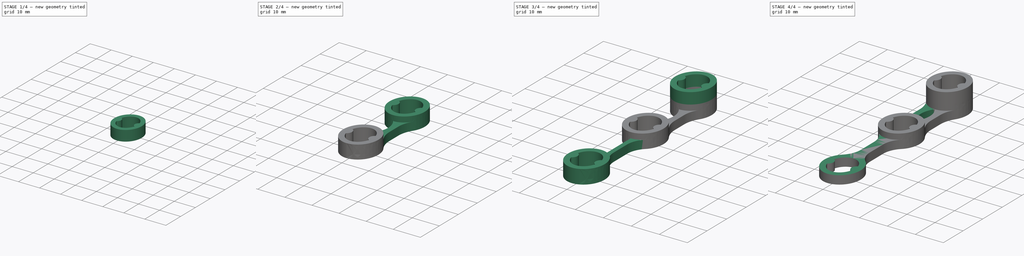
[diagram: build sequence overview — one tinted view per stage of 4, left to right]
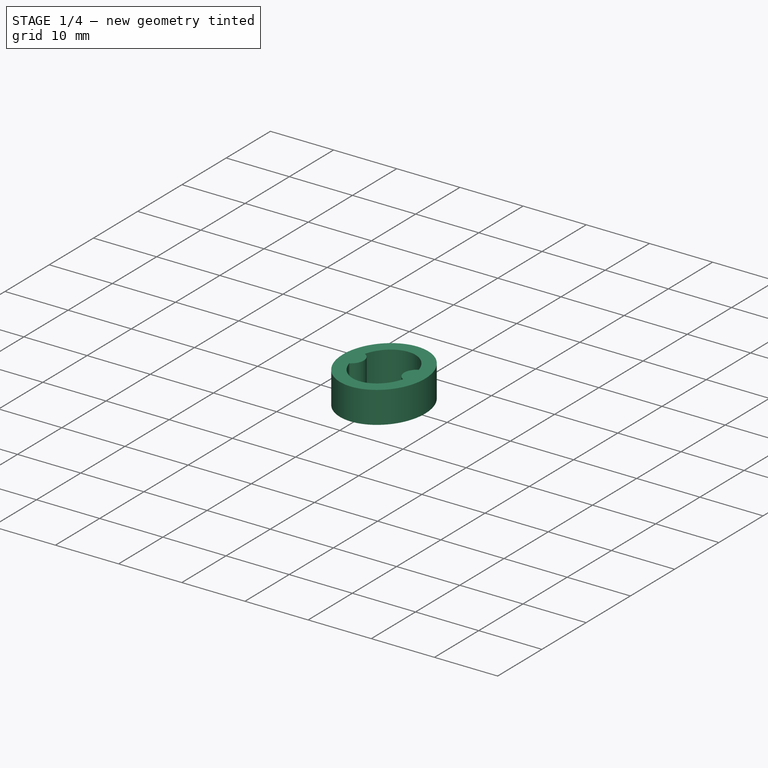
[diagram: stage 1 of 4 — iso view after this stage's code; geometry added in this stage tinted green]
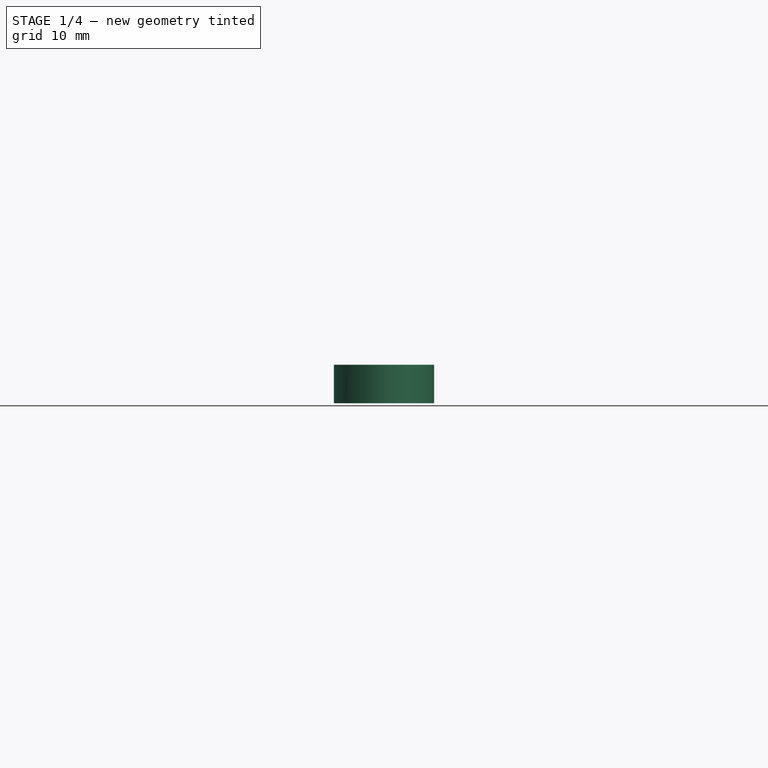
[diagram: stage 1 of 4 — front view after this stage's code; geometry added in this stage tinted green]
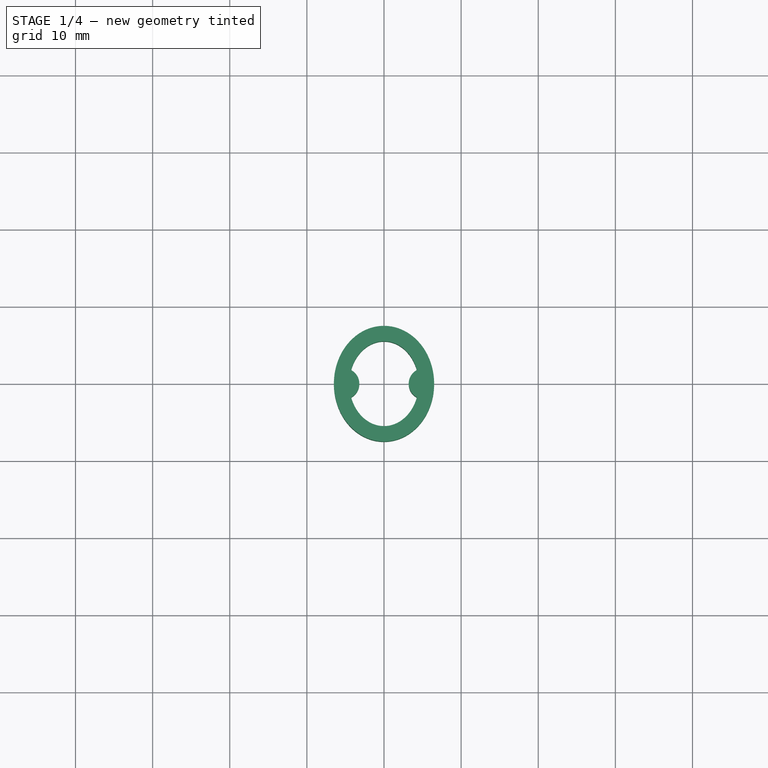
[diagram: stage 1 of 4 — top view after this stage's code; geometry added in this stage tinted green]
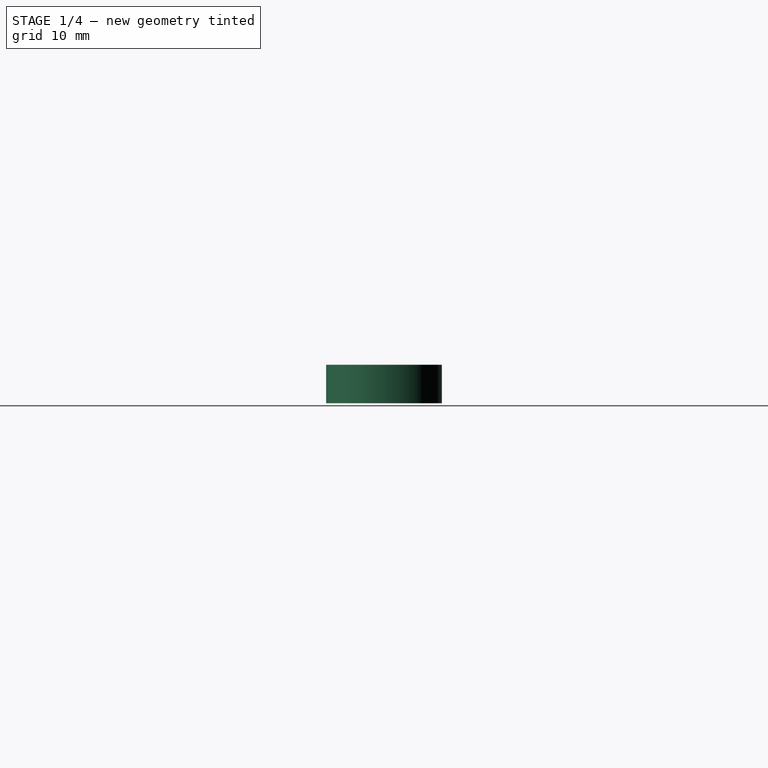
[diagram: stage 1 of 4 — right view after this stage's code; geometry added in this stage tinted green]
FCSTD DOCUMENT  (FreeCAD 1.0RUnknown)
Label: flip-stop_SHALM
License: All rights reserved
LicenseURL: https://en.wikipedia.org/wiki/All_rights_reserved
objects: PartDesign::Pad×5, Sketcher::SketchObject×4, PartDesign::LinearPattern×2, PartDesign::Pocket×1, PartDesign::Mirrored×1, PartDesign::Body×1
note: 33 computed .brp shape members not serialized (recipe doc carries the construction recipe); baked Part::Feature solids carry a one-line shape summary decoded from their .brp

FEATURE [Sketcher::SketchObject] Sketch
  ArcFitTolerance = 1e-06
  AttachmentSupport = -> [XY_Plane]
  FullyConstrained = true
  MakeInternals = false
  MapMode = 5
  sketch-geometry (12):
    g0: Ellipse CenterX=0 CenterY=0 CenterZ=0 NormalX=0 NormalY=0 NormalZ=1 MajorRadius=7.5 MinorRadius=6.5 AngleXU=1.5708
    g1: LineSegment [constr] StartX=0 StartY=7.5 StartZ=0 EndX=0 EndY=-7.5 EndZ=0
    g2: LineSegment [constr] StartX=-6.5 StartY=0 StartZ=0 EndX=6.5 EndY=0 EndZ=0
    g3: GeomPoint [constr] X=4e-16 Y=3.74166 Z=0
    g4: GeomPoint [constr] X=0 Y=-3.74166 Z=0
    g5: Ellipse CenterX=0 CenterY=0 CenterZ=0 NormalX=0 NormalY=0 NormalZ=1 MajorRadius=5.5 MinorRadius=4.5 AngleXU=1.5708
    g6: LineSegment [constr] StartX=0 StartY=5.5 StartZ=0 EndX=0 EndY=-5.5 EndZ=0
    g7: LineSegment [constr] StartX=-4.5 StartY=0 StartZ=0 EndX=4.5 EndY=0 EndZ=0
    g8: GeomPoint [constr] X=4e-16 Y=3.16228 Z=0
    g9: GeomPoint [constr] X=0 Y=-3.16228 Z=0
    g10: LineSegment [constr] StartX=0 StartY=5.5 StartZ=0 EndX=0 EndY=7.5 EndZ=0
    g11: LineSegment [constr] StartX=6.5 StartY=0 StartZ=0 EndX=4.5 EndY=0 EndZ=0
  constraints (14):
    c: InternalAlignment(g1-g4 -> g0) x4
    c: Coincident(g0,g-1)
    c: Horizontal(g2)
    c: DistanceX(g2,g2) = 13
    c: DistanceY(g1,g1) = 15
    c: InternalAlignment(g6-g9 -> g5) x4
    c: Coincident(g5,g0)
    c: Coincident(g10,g6)
    c: Coincident(g10,g1)
    c: Vertical(g10)
    c: Coincident(g11,g2)
    c: Coincident(g11,g7)
    c: Equal(g10,g11)
    c: Distance(g11,g11) = 2
FEATURE [PartDesign::Pad] Pad
  Direction = (0,0,1)
  Length = 5
  Length2 = 10
  Profile = -> Sketch
  ReferenceAxis = -> Sketch [N_Axis]
  Suppressed = false
  Type = 0
FEATURE [Sketcher::SketchObject] Sketch001
  ArcFitTolerance = 1e-06
  AttachmentSupport = -> [XY_Plane]
  ExternalGeometry = -> [Sketch]
  FullyConstrained = false
  MakeInternals = false
  MapMode = 5
  sketch-geometry (5):
    g0: GeomPoint [constr] X=6.5 Y=0 Z=0
    g1: ArcOfCircle CenterX=5.2 CenterY=0 CenterZ=0 NormalX=0 NormalY=0 NormalZ=1 AngleXU=0 Radius=2 StartAngle=1.5708 EndAngle=4.71239
    g2: LineSegment StartX=5.2 StartY=-2 StartZ=0 EndX=5.2 EndY=2 EndZ=0
    g3: LineSegment StartX=-5.2 StartY=2 StartZ=0 EndX=-5.2 EndY=-2 EndZ=0
    g4: ArcOfCircle CenterX=-5.2 CenterY=0 CenterZ=0 NormalX=0 NormalY=0 NormalZ=1 AngleXU=0 Radius=2 StartAngle=4.71239 EndAngle=7.85398
  constraints (13):
    c: PointOnObject(g1,g-1)
    c: Coincident(g2,g1)
    c: Coincident(g2,g1)
    c: Vertical(g2)
    c: PointOnObject(g1,g2)
    c: DistanceX(g-1,g1) = 5.2
    c: Radius(g1) = 2
    c: Vertical(g3)
    c: PointOnObject(g4,g3)
    c: Coincident(g4,g3)
    c: Coincident(g4,g3)
    c: Symmetric(g4,g1,g-2)
    c: Equal(g4,g1)
FEATURE [PartDesign::Pad] Pad001
  BaseFeature = -> Pad
  Direction = (0,0,1)
  Length = 5
  Length2 = 10
  Profile = -> Sketch001
  ReferenceAxis = -> Sketch001 [N_Axis]
  Suppressed = false
  Type = 0
  expr: Length = Pad.Length
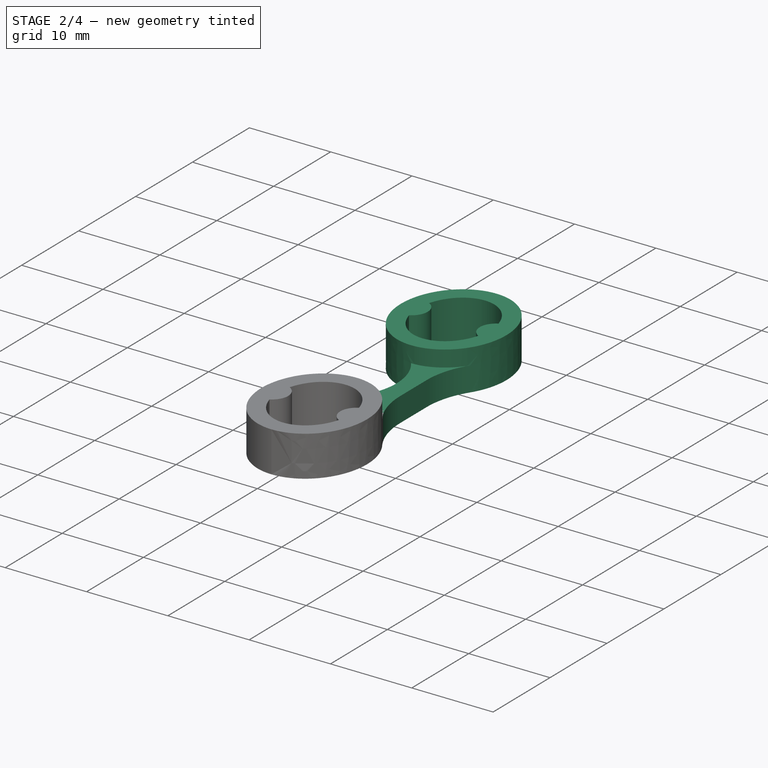
[diagram: stage 2 of 4 — iso view after this stage's code; geometry added in this stage tinted green]
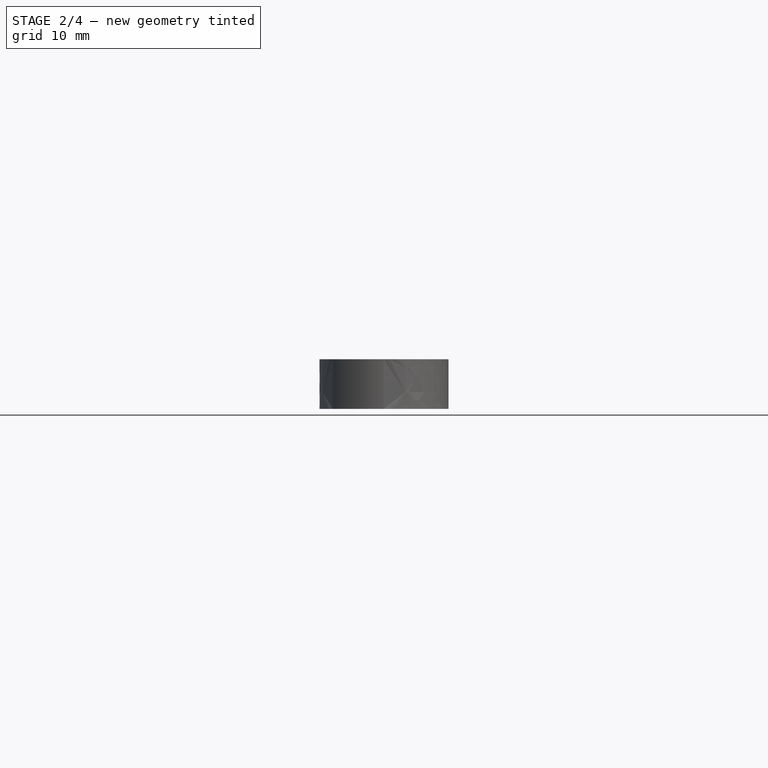
[diagram: stage 2 of 4 — front view after this stage's code; geometry added in this stage tinted green]
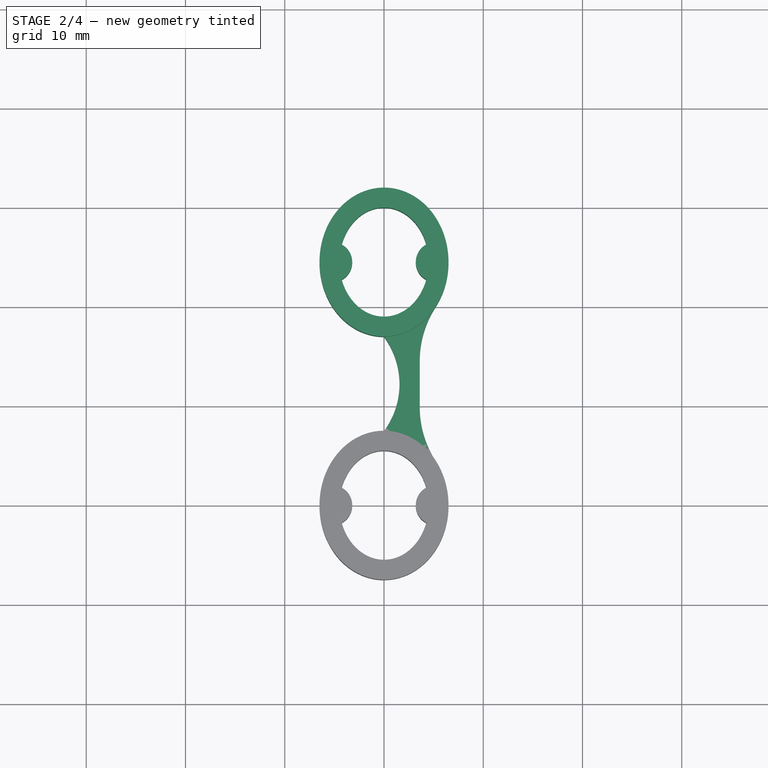
[diagram: stage 2 of 4 — top view after this stage's code; geometry added in this stage tinted green]
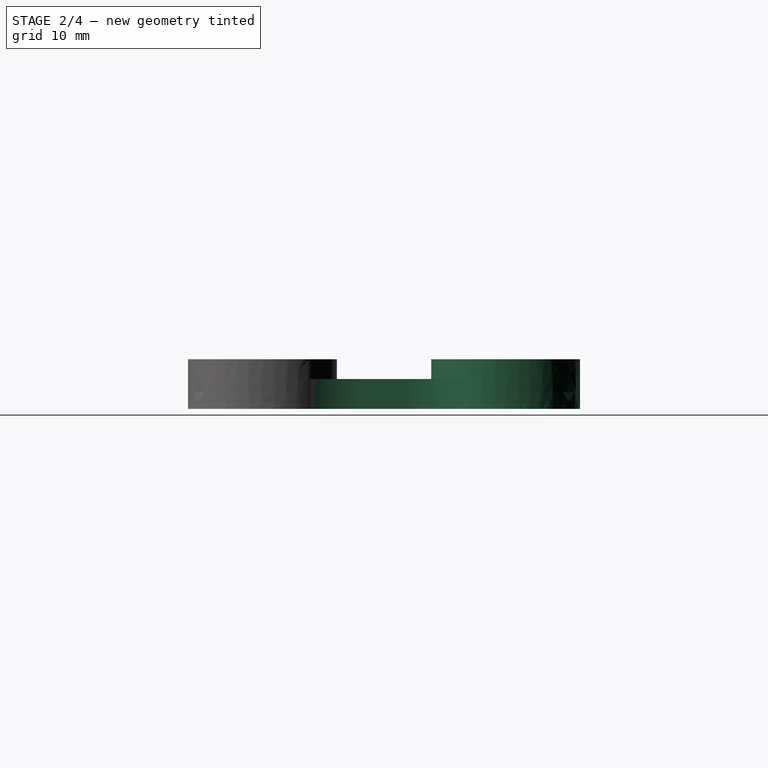
[diagram: stage 2 of 4 — right view after this stage's code; geometry added in this stage tinted green]
FEATURE [Sketcher::SketchObject] Sketch002
  ArcFitTolerance = 1e-06
  AttachmentSupport = -> [XY_Plane]
  ExternalGeometry = -> [Sketch]
  FullyConstrained = true
  MakeInternals = false
  MapMode = 5
  sketch-geometry (13):
    g0: Ellipse [constr] CenterX=0 CenterY=24.5 CenterZ=0 NormalX=0 NormalY=0 NormalZ=1 MajorRadius=7.5 MinorRadius=6.5 AngleXU=1.5708
    g1: LineSegment [constr] StartX=-2.04e-14 StartY=32 StartZ=0 EndX=-2.04e-14 EndY=17 EndZ=0
    g2: LineSegment [constr] StartX=-6.5 StartY=24.5 StartZ=0 EndX=6.5 EndY=24.5 EndZ=0
    g3: GeomPoint [constr] X=4e-16 Y=28.2417 Z=0
    g4: GeomPoint [constr] X=0 Y=20.7583 Z=0
    g5: LineSegment [constr] StartX=-1.87e-14 StartY=7.5 StartZ=0 EndX=-1.87e-14 EndY=-7.5 EndZ=0
    g6: LineSegment [constr] StartX=-6.5 StartY=0 StartZ=0 EndX=6.5 EndY=0 EndZ=0
    g7: LineSegment StartX=3.6 StartY=9.9259 StartZ=0 EndX=3.6 EndY=14.5741 EndZ=0
    g8: ArcOfCircle CenterX=13.6 CenterY=14.5741 CenterZ=0 NormalX=0 NormalY=0 NormalZ=1 AngleXU=0 Radius=10 StartAngle=2.56685 EndAngle=3.14159
    g9: ArcOfCircle CenterX=13.6 CenterY=9.9259 CenterZ=0 NormalX=0 NormalY=0 NormalZ=1 AngleXU=0 Radius=10 StartAngle=3.14159 EndAngle=3.71634
    g10: ArcOfCircle CenterX=-6.4372 CenterY=12.25 CenterZ=0 NormalX=0 NormalY=0 NormalZ=1 AngleXU=0 Radius=8 StartAngle=5.64747 EndAngle=6.9189
    g11: LineSegment StartX=-2.04e-14 StartY=17 StartZ=0 EndX=5.20668 EndY=20.0103 EndZ=0
    g12: LineSegment StartX=-1.87e-14 StartY=7.5 StartZ=0 EndX=5.20668 EndY=4.4897 EndZ=0
  constraints (29):
    c: InternalAlignment(g1-g4 -> g0) x4
    c: PointOnObject(g0,g-2)
    c: Vertical(g1)
    c: PointOnObject(g5,g-3)
    c: PointOnObject(g5,g-3)
    c: Vertical(g5)
    c: PointOnObject(g6,g-3)
    c: PointOnObject(g6,g-3)
    c: Horizontal(g6)
    c: Equal(g5,g1)
    c: Equal(g6,g2)
    c: PointOnObject(g-1,g5)
    c: PointOnObject(g-1,g6)
    c: DistanceY(g-1,g0) = 24.5  'HH1'
    c: Vertical(g7)
    c: Tangent(g7,g8) = 1.5708
    c: Tangent(g7,g9) = 1.5708
    c: Tangent(g9,g-3) = 1.5708
    c: Tangent(g8,g0) = 1.5708
    c: Equal(g8,g9)
    c: DistanceX(g5,g7) = 3.6
    c: Radius(g9) = 10
    c: Coincident(g10,g1)
    c: Coincident(g10,g5)
    c: Coincident(g11,g1)
    c: Coincident(g11,g8)
    c: Coincident(g12,g5)
    c: Coincident(g12,g9)
    c: Radius(g10) = 8
FEATURE [Sketcher::SketchObject] Sketch003
  ArcFitTolerance = 1e-06
  AttachmentSupport = -> [XY_Plane]
  ExternalGeometry = -> [Sketch]
  FullyConstrained = true
  MakeInternals = false
  MapMode = 5
  sketch-geometry (13):
    g0: Ellipse [constr] CenterX=0 CenterY=-30 CenterZ=0 NormalX=0 NormalY=0 NormalZ=1 MajorRadius=7.5 MinorRadius=6.5 AngleXU=1.5708
    g1: LineSegment [constr] StartX=0 StartY=-22.5 StartZ=0 EndX=0 EndY=-37.5 EndZ=0
    g2: LineSegment [constr] StartX=-6.5 StartY=-30 StartZ=0 EndX=6.5 EndY=-30 EndZ=0
    g3: GeomPoint [constr] X=6.966e-13 Y=-26.2583 Z=0
    g4: GeomPoint [constr] X=-6.963e-13 Y=-33.7417 Z=0
    g5: LineSegment [constr] StartX=0 StartY=7.5 StartZ=0 EndX=0 EndY=-7.5 EndZ=0
    g6: LineSegment [constr] StartX=-6.5 StartY=0 StartZ=0 EndX=6.5 EndY=0 EndZ=0
    g7: LineSegment StartX=1.6 StartY=-18.3707 StartZ=0 EndX=1.6 EndY=-11.6293 EndZ=0
    g8: ArcOfCircle CenterX=9.6 CenterY=-11.6293 CenterZ=0 NormalX=0 NormalY=0 NormalZ=1 AngleXU=0 Radius=8 StartAngle=2.3267 EndAngle=3.14159
    g9: ArcOfCircle CenterX=9.6 CenterY=-18.3707 CenterZ=0 NormalX=0 NormalY=0 NormalZ=1 AngleXU=0 Radius=8 StartAngle=3.14159 EndAngle=3.95649
    g10: LineSegment StartX=4.11245 StartY=-5.80808 StartZ=0 EndX=0 EndY=-7.5 EndZ=0
    g11: LineSegment StartX=0 StartY=-7.5 StartZ=0 EndX=0 EndY=-22.5 EndZ=0
    g12: LineSegment StartX=0 StartY=-22.5 StartZ=0 EndX=4.11245 EndY=-24.1919 EndZ=0
  constraints (28):
    c: InternalAlignment(g1-g4 -> g0) x4
    c: PointOnObject(g0,g-2)
    c: Vertical(g1)
    c: PointOnObject(g5,g-3)
    c: PointOnObject(g5,g-3)
    c: Vertical(g5)
    c: PointOnObject(g6,g-3)
    c: PointOnObject(g6,g-3)
    c: Horizontal(g6)
    c: Equal(g5,g1)
    c: Equal(g6,g2)
    c: PointOnObject(g-1,g5)
    c: PointOnObject(g-1,g6)
    c: DistanceY(g0,g-1) = 30  'HH2'
    c: Vertical(g7)
    c: Tangent(g7,g8) = 1.5708
    c: Tangent(g7,g9) = 1.5708
    c: Tangent(g8,g-3) = 1.5708
    c: Tangent(g9,g0) = 1.5708
    c: Equal(g9,g8)
    c: DistanceX(g-1,g7) = 1.6
    c: Radius(g8) = 8
    c: Coincident(g8,g10)
    c: Coincident(g10,g11)
    c: Coincident(g11,g1)
    c: Coincident(g11,g12)
    c: Coincident(g12,g9)
    c: Coincident(g10,g5)
FEATURE [PartDesign::Pad] Pad002
  BaseFeature = -> Pad001
  Direction = (0,0,1)
  Length = 3
  Length2 = 10
  Profile = -> Sketch002
  ReferenceAxis = -> Sketch002 [N_Axis]
  Suppressed = false
  Type = 0
FEATURE [PartDesign::LinearPattern] LinearPattern
  BaseFeature = -> Pad002
  Direction = -> Sketch [V_Axis]
  Length = 24.5
  Mode = 0
  Occurrences = 2
  Offset = 24.5
  Originals = -> [Pad,Pad001]
  Suppressed = false
  TransformMode = 0
  expr: Length = Sketch002.Constraints.HH1
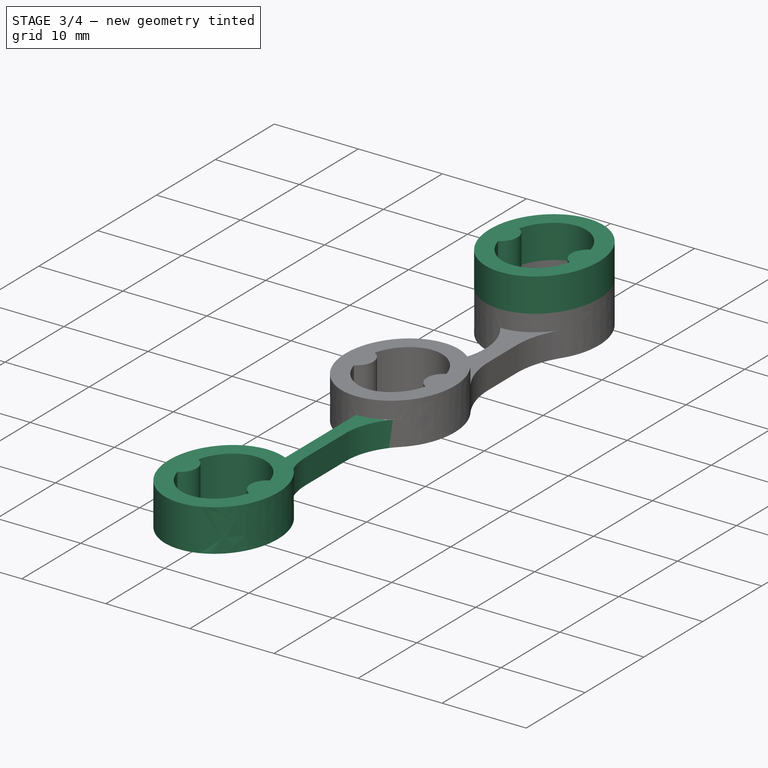
[diagram: stage 3 of 4 — iso view after this stage's code; geometry added in this stage tinted green]
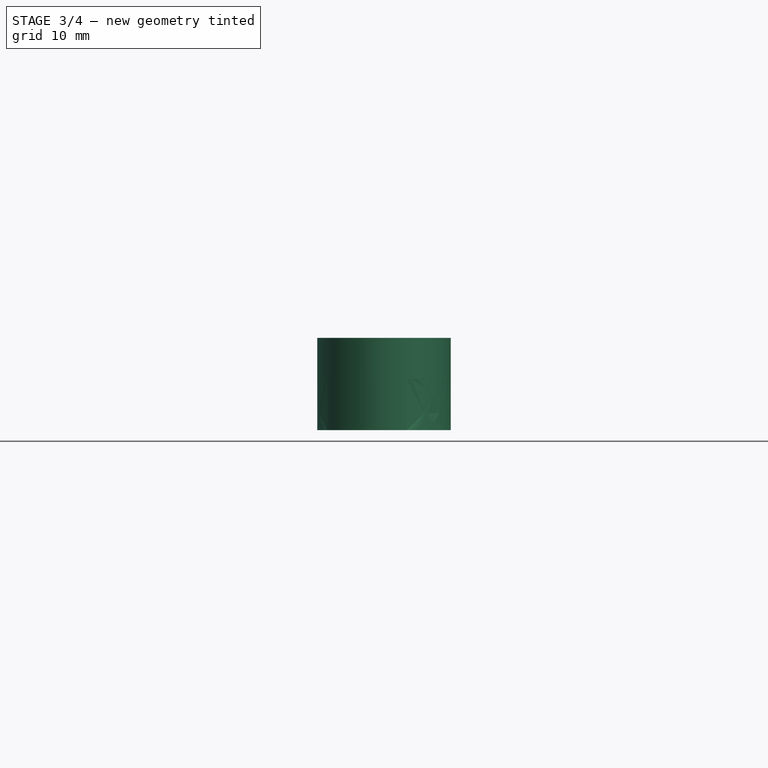
[diagram: stage 3 of 4 — front view after this stage's code; geometry added in this stage tinted green]
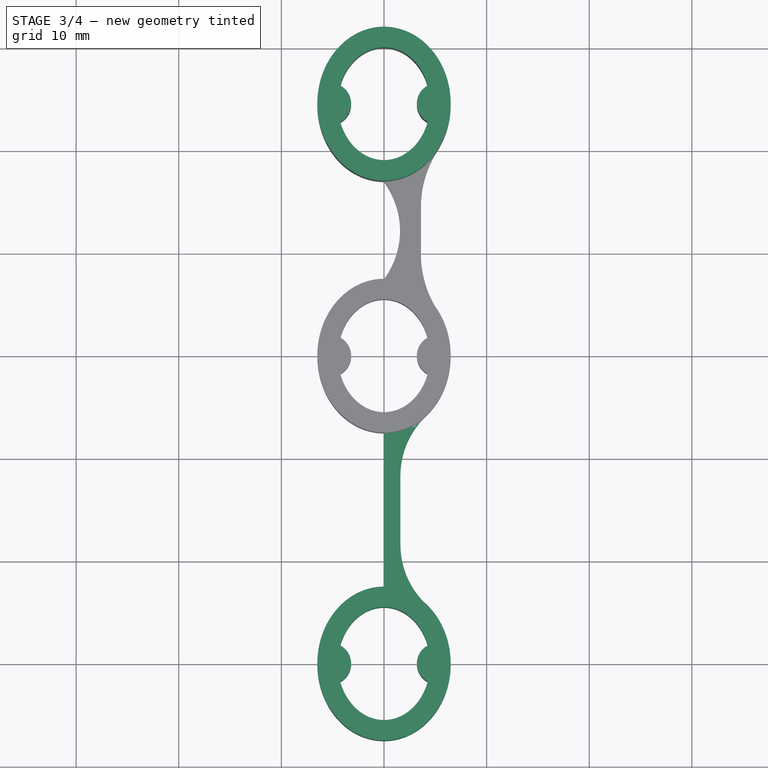
[diagram: stage 3 of 4 — top view after this stage's code; geometry added in this stage tinted green]
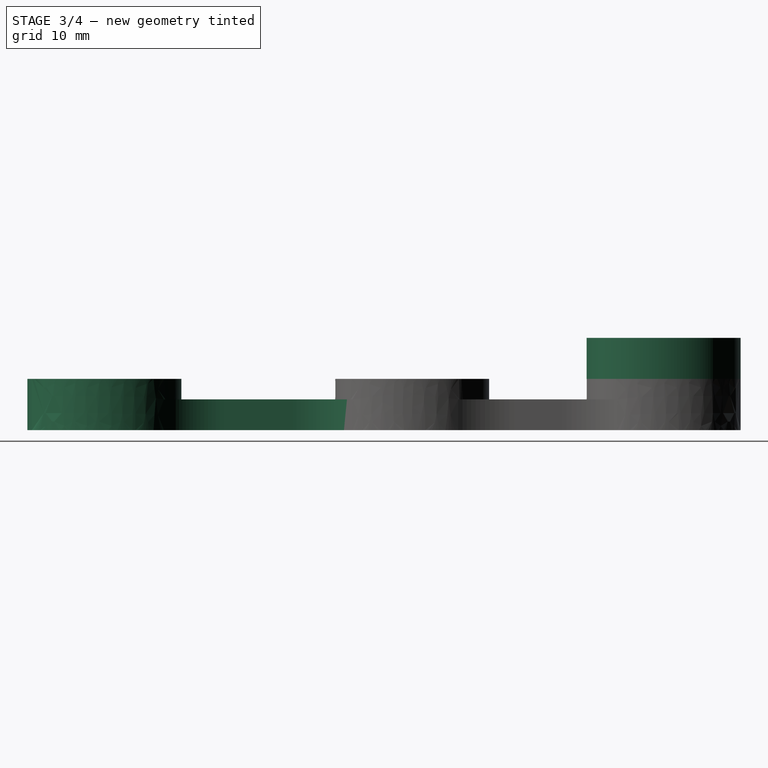
[diagram: stage 3 of 4 — right view after this stage's code; geometry added in this stage tinted green]
FEATURE [PartDesign::Pad] Pad004  label="increase-height-Pad004"
  BaseFeature = -> LinearPattern
  Direction = (0,0,1)
  Length = 4
  Length2 = 10
  Profile = -> LinearPattern [Face25,Face33,Face39,Face40,Face34]
  Suppressed = false
  Type = 0
FEATURE [PartDesign::Pad] Pad003
  BaseFeature = -> Pad004
  Direction = (0,0,1)
  Length = 3
  Length2 = 10
  Profile = -> Sketch003
  ReferenceAxis = -> Sketch003 [N_Axis]
  Suppressed = false
  Type = 0
  expr: Length = Pad002.Length
FEATURE [PartDesign::LinearPattern] LinearPattern001
  BaseFeature = -> Pad003
  Direction = -> Sketch [V_Axis]
  Length = 30
  Mode = 0
  Occurrences = 2
  Offset = 30
  Originals = -> [Pad,Pad001]
  Reversed = true
  Suppressed = false
  TransformMode = 0
  expr: Length = Sketch003.Constraints.HH2
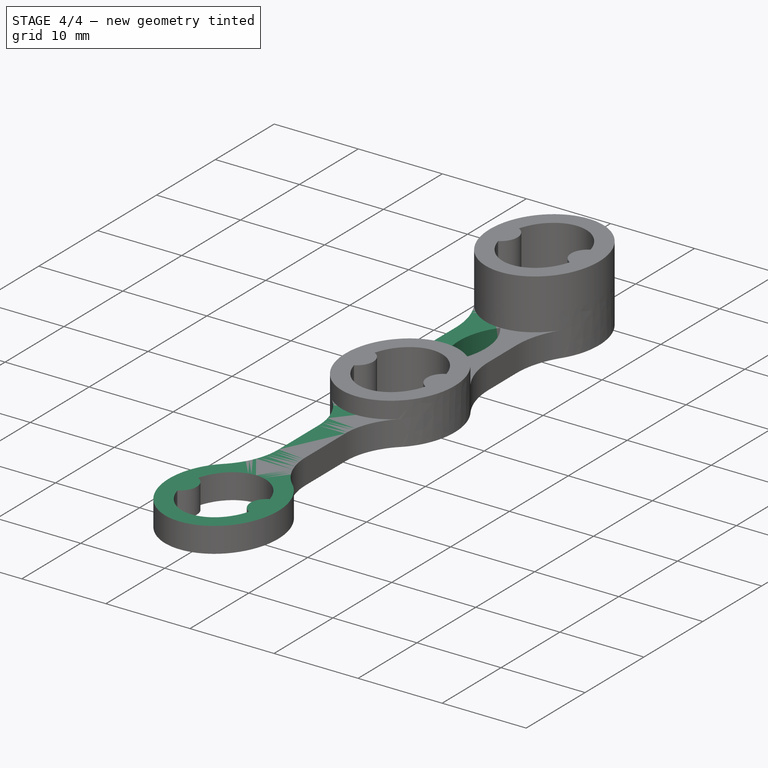
[diagram: stage 4 of 4 — iso view after this stage's code; geometry added in this stage tinted green]
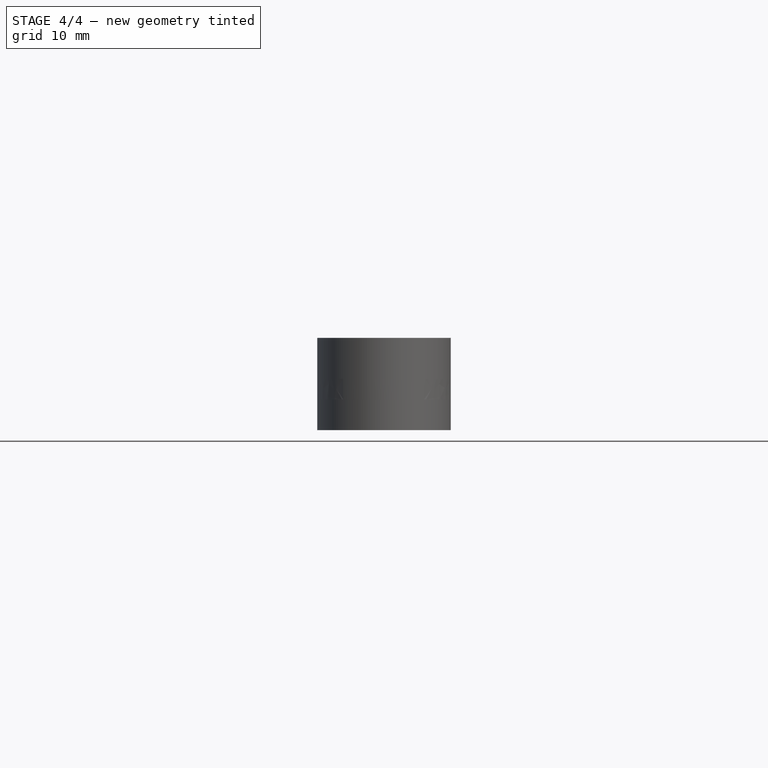
[diagram: stage 4 of 4 — front view after this stage's code; geometry added in this stage tinted green]
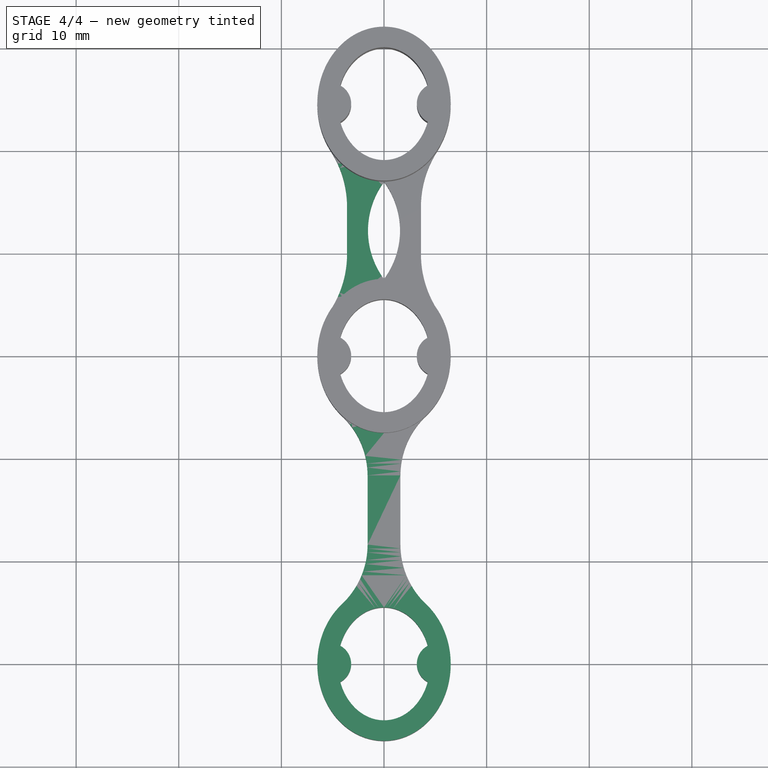
[diagram: stage 4 of 4 — top view after this stage's code; geometry added in this stage tinted green]
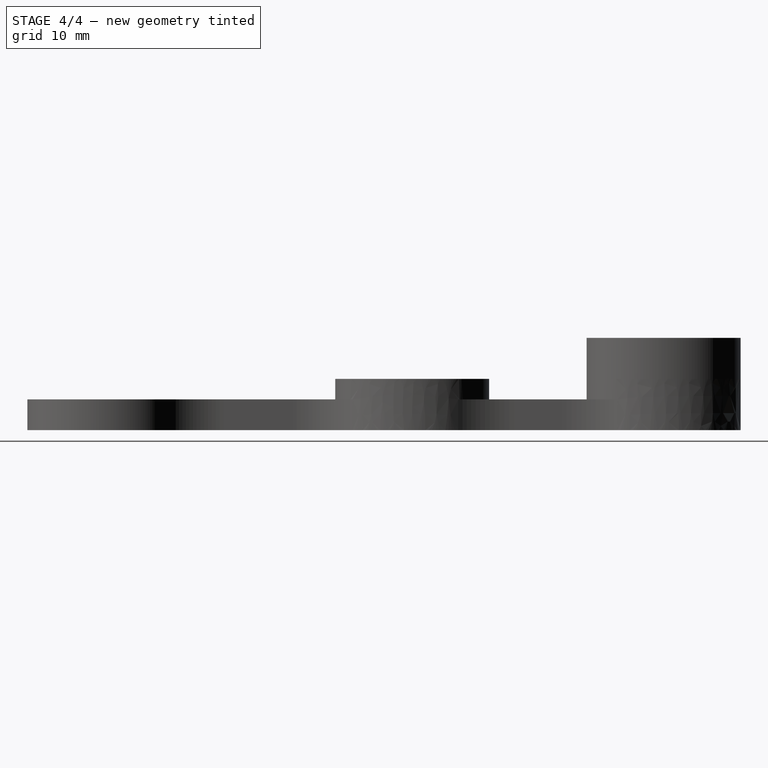
[diagram: stage 4 of 4 — right view after this stage's code; geometry added in this stage tinted green]
FEATURE [PartDesign::Pocket] Pocket  label="decreae-height-Pocket"
  BaseFeature = -> LinearPattern001
  Direction = (0,0,-1)
  Length = 2
  Length2 = 5
  Profile = -> LinearPattern001 [Face32,Face45,Face57,Face56,Face44]
  Suppressed = false
  Type = 0
FEATURE [PartDesign::Mirrored] Mirrored
  BaseFeature = -> Pocket
  MirrorPlane = -> Sketch002 [V_Axis]
  Originals = -> [Pad002,Pad003]
  Refine = true
  Suppressed = false
  TransformMode = 0
FEATURE [PartDesign::Body] Body
  AllowCompound = false
  Group = -> [Sketch,Pad,Sketch001,Pad001,Sketch002,Sketch003,Pad002,LinearPattern,Pad004,Pad003,LinearPattern001,Pocket,Mirrored]
  Origin = -> Origin
  Tip = -> Mirrored
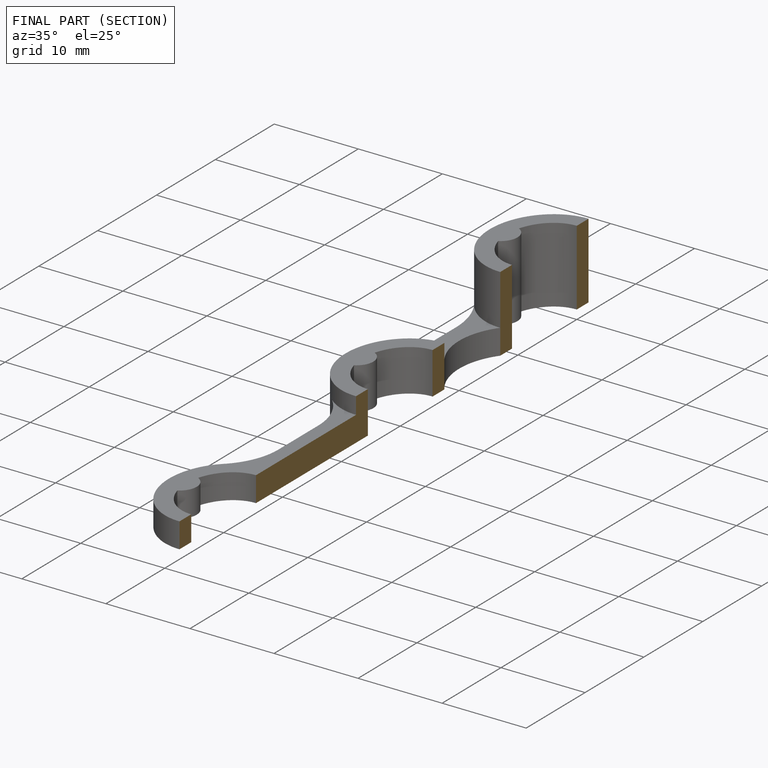
[diagram: finished part — half-section view (interior)]
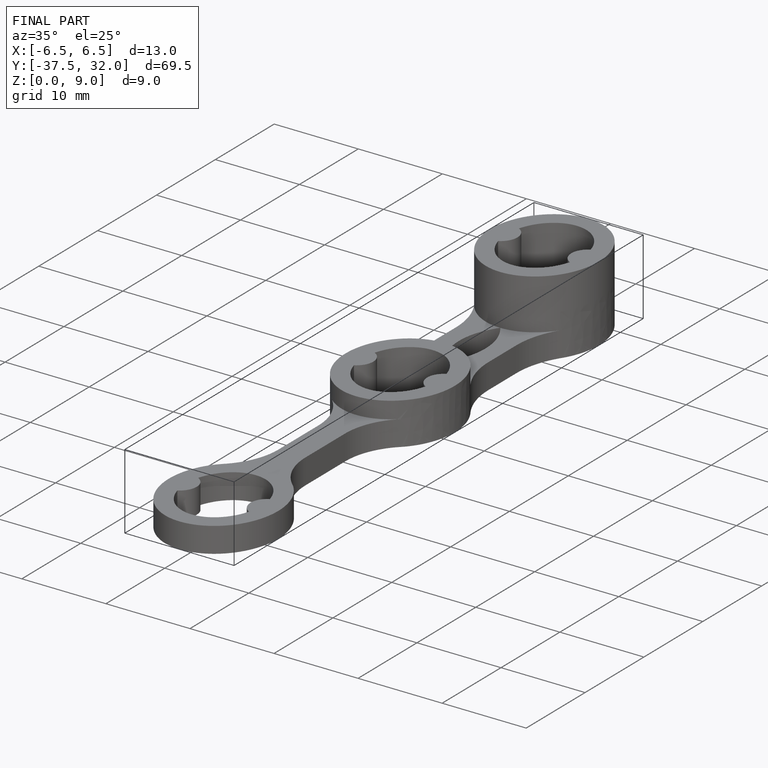
[diagram: finished part — iso view with bounding-box wireframe]
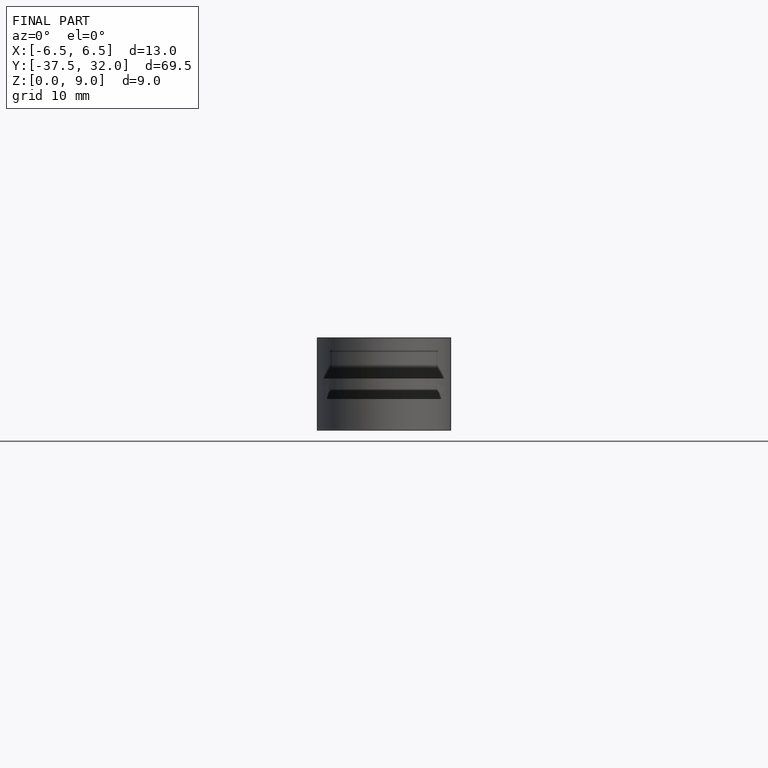
[diagram: finished part — front view with bounding-box wireframe]
